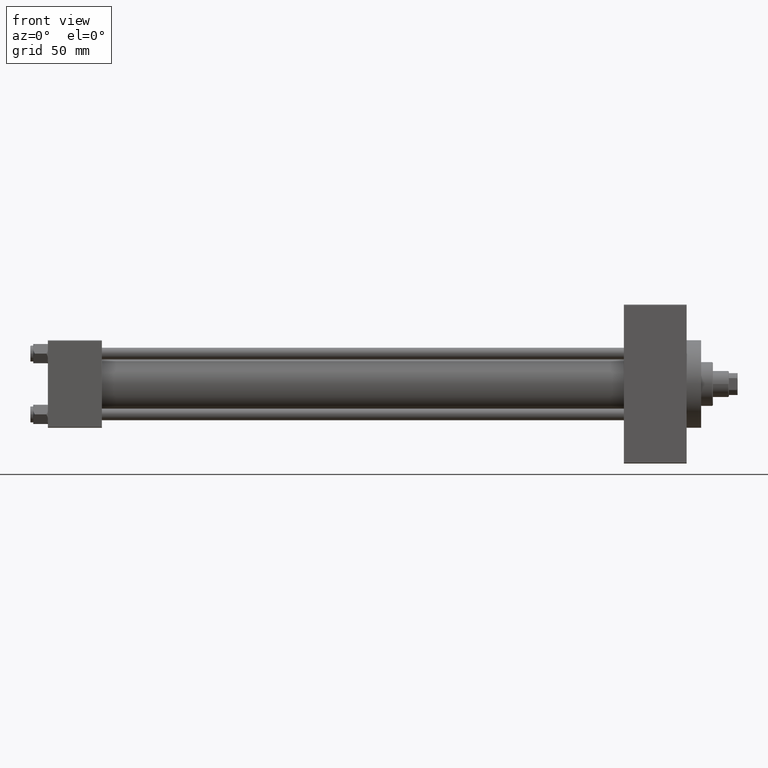
[diagram: clean part render]
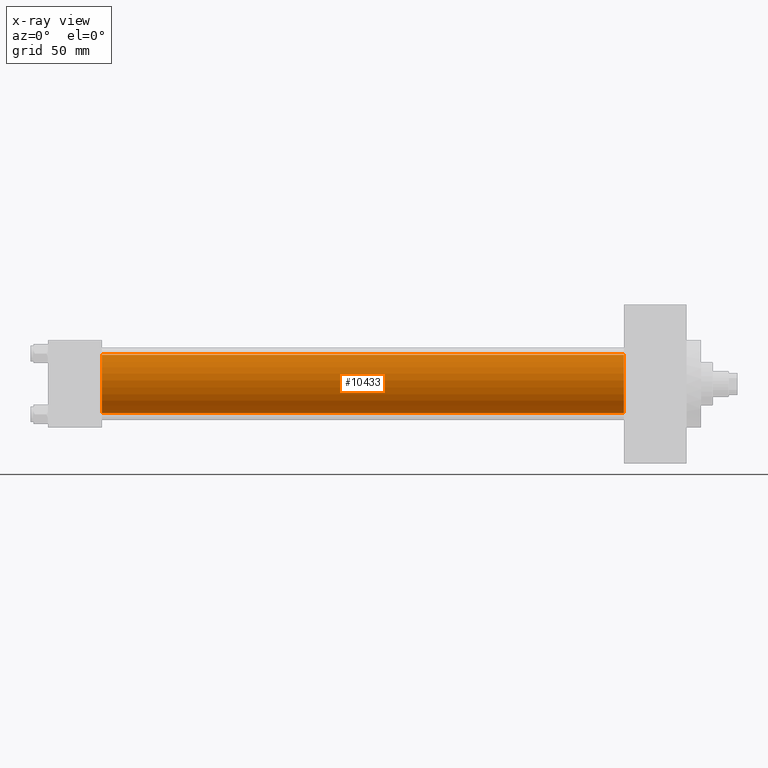
[diagram: x-ray — body ghosted, one internal face saturated and labeled with its STEP entity id]
A machine part, front view, then the same camera in x-ray: the body is ghosted and one INTERNAL B-rep face — a face not visible from any outside direction — is saturated and labeled: STEP entity #10433.
In plain terms, the highlighted cylindrical surface (edge-blend (fillet) strip) has radius 20 mm, axis along (-1, -0, -0).
Its self-contained STEP definition (entity closure, byte-faithful):
#134 = CARTESIAN_POINT ( 'NONE',  ( 394.9999999999999432, -2.602085213965210642E-15, 0.000000000000000000 ) ) ;
#3866 = FACE_OUTER_BOUND ( 'NONE', #23648, .T. ) ;
#5921 = CARTESIAN_POINT ( 'NONE',  ( 394.9999999999999432, -1.527916156705046464E-16, -20.00000000000000000 ) ) ;
#6510 = VERTEX_POINT ( 'NONE', #9986 ) ;
#7466 = VERTEX_POINT ( 'NONE', #21673 ) ;
#7942 = VECTOR ( 'NONE', #38371, 1000.000000000000000 ) ;
#9986 = CARTESIAN_POINT ( 'NONE',  ( 394.9999999999999432, -1.527916156705046464E-16, -20.00000000000000000 ) ) ;
#10433 = ADVANCED_FACE ( 'NONE', ( #3866 ), #37281, .F. ) ;
#11094 = DIRECTION ( 'NONE',  ( -1.000000000000000000, -0.000000000000000000, -0.000000000000000000 ) ) ;
#11688 = LINE ( 'NONE', #23409, #7942 ) ;
#12133 = DIRECTION ( 'NONE',  ( 1.000000000000000000, 0.000000000000000000, 0.000000000000000000 ) ) ;
#13473 = AXIS2_PLACEMENT_3D ( 'NONE', #134, #11094, #48747 ) ;
#15129 = CARTESIAN_POINT ( 'NONE',  ( 37.00000000000000000, -2.602085213965210642E-15, 0.000000000000000000 ) ) ;
#15380 = DIRECTION ( 'NONE',  ( 0.000000000000000000, 0.000000000000000000, -1.000000000000000000 ) ) ;
#18754 = EDGE_CURVE ( 'NONE', #7466, #20374, #11688, .T. ) ;
#19260 = EDGE_CURVE ( 'NONE', #7466, #6510, #26955, .T. ) ;
#20374 = VERTEX_POINT ( 'NONE', #33523 ) ;
#21673 = CARTESIAN_POINT ( 'NONE',  ( 394.9999999999999432, -2.602085213965210642E-15, 20.00000000000000000 ) ) ;
#23409 = CARTESIAN_POINT ( 'NONE',  ( 394.9999999999999432, -2.602085213965210642E-15, 20.00000000000000000 ) ) ;
#23648 = EDGE_LOOP ( 'NONE', ( #26608, #41976, #31010, #30519 ) ) ;
#26608 = ORIENTED_EDGE ( 'NONE', *, *, #19260, .T. ) ;
#26955 = CIRCLE ( 'NONE', #34935, 20.00000000000000000 ) ;
#28486 = AXIS2_PLACEMENT_3D ( 'NONE', #15129, #12133, #15380 ) ;
#29844 = DIRECTION ( 'NONE',  ( -1.000000000000000000, -0.000000000000000000, -0.000000000000000000 ) ) ;
#30519 = ORIENTED_EDGE ( 'NONE', *, *, #18754, .F. ) ;
#30883 = CIRCLE ( 'NONE', #28486, 20.00000000000000000 ) ;
#31010 = ORIENTED_EDGE ( 'NONE', *, *, #39908, .F. ) ;
#31615 = VERTEX_POINT ( 'NONE', #32655 ) ;
#31886 = EDGE_CURVE ( 'NONE', #6510, #31615, #40580, .T. ) ;
#32655 = CARTESIAN_POINT ( 'NONE',  ( 37.00000000000000000, -1.527916156705046464E-16, -20.00000000000000000 ) ) ;
#33523 = CARTESIAN_POINT ( 'NONE',  ( 37.00000000000000000, -2.602085213965210642E-15, 20.00000000000000000 ) ) ;
#34935 = AXIS2_PLACEMENT_3D ( 'NONE', #45492, #48230, #37262 ) ;
#35355 = VECTOR ( 'NONE', #29844, 1000.000000000000000 ) ;
#37262 = DIRECTION ( 'NONE',  ( 0.000000000000000000, 0.000000000000000000, -1.000000000000000000 ) ) ;
#37281 = CYLINDRICAL_SURFACE ( 'NONE', #13473, 20.00000000000000000 ) ;
#38371 = DIRECTION ( 'NONE',  ( -1.000000000000000000, -0.000000000000000000, -0.000000000000000000 ) ) ;
#39908 = EDGE_CURVE ( 'NONE', #20374, #31615, #30883, .T. ) ;
#40580 = LINE ( 'NONE', #5921, #35355 ) ;
#41976 = ORIENTED_EDGE ( 'NONE', *, *, #31886, .T. ) ;
#45492 = CARTESIAN_POINT ( 'NONE',  ( 394.9999999999999432, -2.602085213965210642E-15, 0.000000000000000000 ) ) ;
#48230 = DIRECTION ( 'NONE',  ( 1.000000000000000000, 0.000000000000000000, 0.000000000000000000 ) ) ;
#48747 = DIRECTION ( 'NONE',  ( 0.000000000000000000, 0.000000000000000000, 1.000000000000000000 ) ) ;